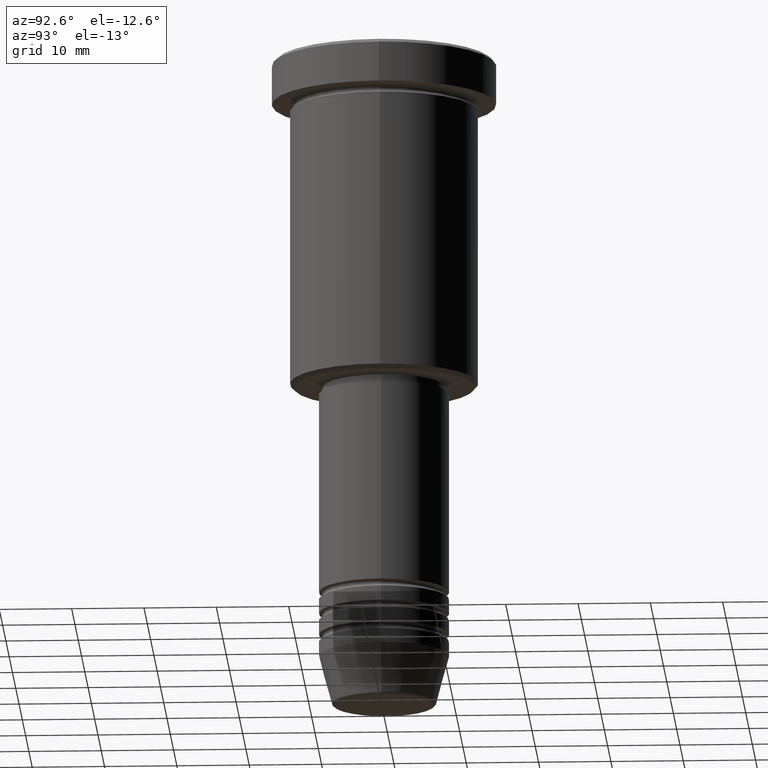
[diagram: clean part render]
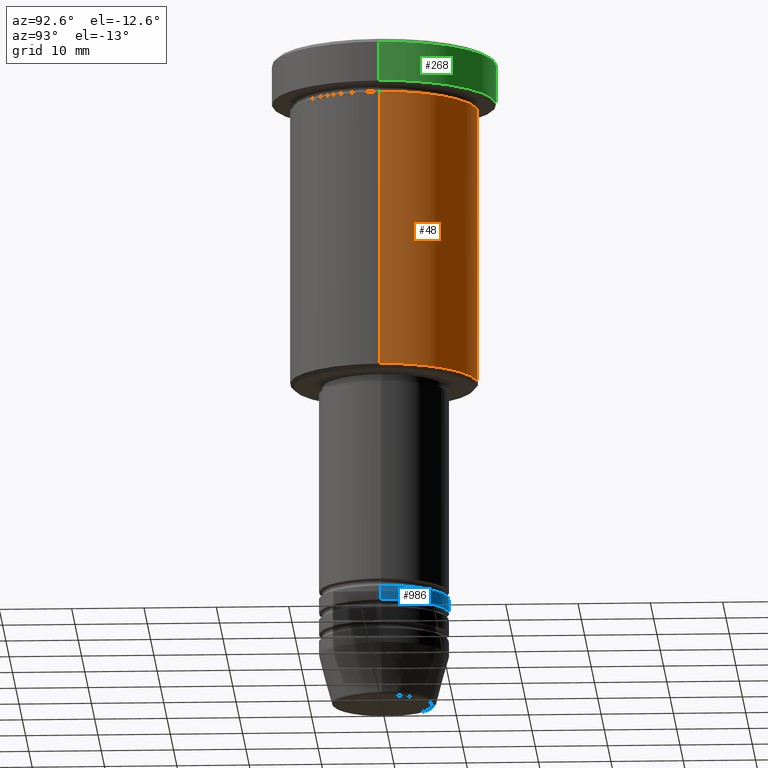
[diagram: same view with three faces highlighted in distinct colors, each labeled with its STEP entity id]
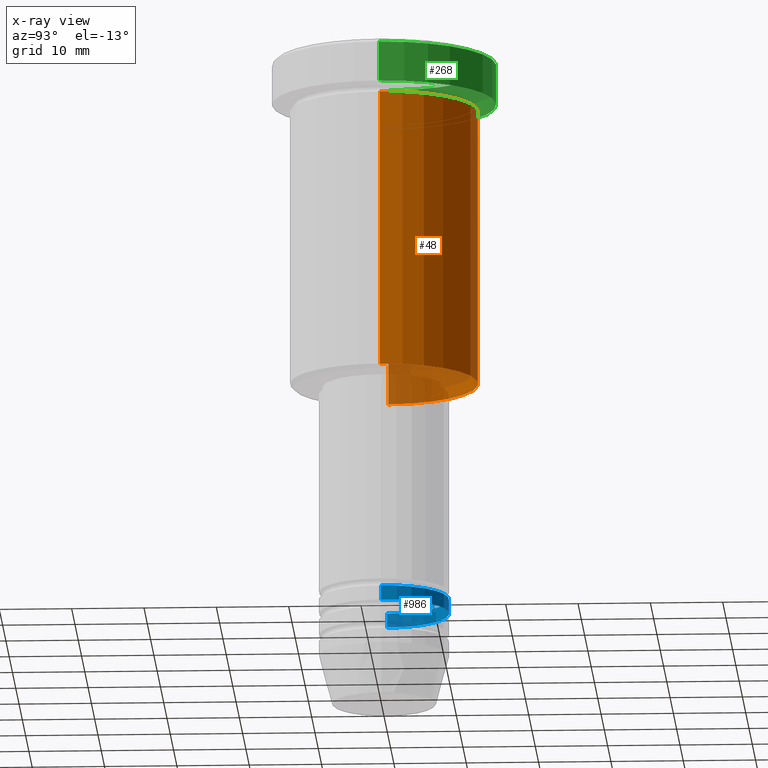
[diagram: x-ray of the same camera — body ghosted, the three highlighted faces saturated]
A machine part, auxiliary view with three faces highlighted in distinct colors.
The next image is the same camera in x-ray (body ghosted, the three faces saturated) — at least one of them is partly hidden behind the body in this view.
Their STEP definitions:

[orange] entity #48 — the highlighted cylindrical surface (partial cylindrical patch) has radius 13 mm, axis along (-0, -0, 1).
#30 = CIRCLE ( 'NONE', #69, 13.00000000000000000 ) ;
#48 = ADVANCED_FACE ( 'NONE', ( #1113 ), #553, .T. ) ;
#55 = CARTESIAN_POINT ( 'NONE',  ( 13.00000000000000000, 0.000000000000000000, -45.49999999999998579 ) ) ;
#69 = AXIS2_PLACEMENT_3D ( 'NONE', #176, #916, #374 ) ;
#134 = CARTESIAN_POINT ( 'NONE',  ( -13.00000000000000000, 1.592040838891559095E-15, -45.49999999999998579 ) ) ;
#152 = CARTESIAN_POINT ( 'NONE',  ( -13.00000000000000000, 1.592040838891559095E-15, 0.000000000000000000 ) ) ;
#174 = VERTEX_POINT ( 'NONE', #134 ) ;
#176 = CARTESIAN_POINT ( 'NONE',  ( 0.000000000000000000, 0.000000000000000000, -45.49999999999998579 ) ) ;
#208 = CARTESIAN_POINT ( 'NONE',  ( 0.000000000000000000, 0.000000000000000000, -6.999999999999995559 ) ) ;
#217 = CARTESIAN_POINT ( 'NONE',  ( 13.00000000000000000, 0.000000000000000000, 0.000000000000000000 ) ) ;
#220 = CIRCLE ( 'NONE', #845, 13.00000000000000000 ) ;
#239 = EDGE_CURVE ( 'NONE', #174, #995, #679, .T. ) ;
#240 = AXIS2_PLACEMENT_3D ( 'NONE', #383, #565, #937 ) ;
#273 = ORIENTED_EDGE ( 'NONE', *, *, #1008, .T. ) ;
#342 = DIRECTION ( 'NONE',  ( -0.000000000000000000, -0.000000000000000000, 1.000000000000000000 ) ) ;
#374 = DIRECTION ( 'NONE',  ( -1.000000000000000000, 0.000000000000000000, 0.000000000000000000 ) ) ;
#383 = CARTESIAN_POINT ( 'NONE',  ( 0.000000000000000000, 0.000000000000000000, 0.000000000000000000 ) ) ;
#413 = VECTOR ( 'NONE', #342, 1000.000000000000000 ) ;
#501 = VERTEX_POINT ( 'NONE', #742 ) ;
#512 = ORIENTED_EDGE ( 'NONE', *, *, #551, .F. ) ;
#516 = ORIENTED_EDGE ( 'NONE', *, *, #239, .T. ) ;
#546 = CARTESIAN_POINT ( 'NONE',  ( -13.00000000000000000, 1.592040838891559095E-15, -6.999999999999995559 ) ) ;
#551 = EDGE_CURVE ( 'NONE', #501, #995, #220, .T. ) ;
#553 = CYLINDRICAL_SURFACE ( 'NONE', #240, 13.00000000000000000 ) ;
#565 = DIRECTION ( 'NONE',  ( -0.000000000000000000, -0.000000000000000000, 1.000000000000000000 ) ) ;
#579 = DIRECTION ( 'NONE',  ( -0.000000000000000000, -0.000000000000000000, 1.000000000000000000 ) ) ;
#606 = ORIENTED_EDGE ( 'NONE', *, *, #724, .F. ) ;
#659 = DIRECTION ( 'NONE',  ( -0.000000000000000000, -0.000000000000000000, 1.000000000000000000 ) ) ;
#679 = LINE ( 'NONE', #152, #413 ) ;
#724 = EDGE_CURVE ( 'NONE', #780, #501, #1031, .T. ) ;
#742 = CARTESIAN_POINT ( 'NONE',  ( 13.00000000000000000, 0.000000000000000000, -6.999999999999995559 ) ) ;
#753 = VECTOR ( 'NONE', #579, 1000.000000000000000 ) ;
#757 = EDGE_LOOP ( 'NONE', ( #273, #516, #512, #606 ) ) ;
#780 = VERTEX_POINT ( 'NONE', #55 ) ;
#845 = AXIS2_PLACEMENT_3D ( 'NONE', #208, #659, #1015 ) ;
#916 = DIRECTION ( 'NONE',  ( -0.000000000000000000, -0.000000000000000000, 1.000000000000000000 ) ) ;
#937 = DIRECTION ( 'NONE',  ( 1.000000000000000000, 0.000000000000000000, 0.000000000000000000 ) ) ;
#995 = VERTEX_POINT ( 'NONE', #546 ) ;
#1008 = EDGE_CURVE ( 'NONE', #780, #174, #30, .T. ) ;
#1015 = DIRECTION ( 'NONE',  ( 1.000000000000000000, 0.000000000000000000, 0.000000000000000000 ) ) ;
#1031 = LINE ( 'NONE', #217, #753 ) ;
#1113 = FACE_OUTER_BOUND ( 'NONE', #757, .T. ) ;

[blue] entity #986 — the highlighted cylindrical surface (partial cylindrical patch) has radius 9 mm, axis along (-0, -0, 1).
#40 = CARTESIAN_POINT ( 'NONE',  ( 9.000000000000000000, 0.000000000000000000, -75.99999999999997158 ) ) ;
#85 = EDGE_CURVE ( 'NONE', #735, #932, #463, .T. ) ;
#130 = EDGE_LOOP ( 'NONE', ( #692, #327, #148, #906 ) ) ;
#148 = ORIENTED_EDGE ( 'NONE', *, *, #810, .F. ) ;
#182 = VECTOR ( 'NONE', #194, 1000.000000000000000 ) ;
#193 = DIRECTION ( 'NONE',  ( 1.000000000000000000, 0.000000000000000000, 0.000000000000000000 ) ) ;
#194 = DIRECTION ( 'NONE',  ( -0.000000000000000000, -0.000000000000000000, 1.000000000000000000 ) ) ;
#315 = AXIS2_PLACEMENT_3D ( 'NONE', #920, #1003, #193 ) ;
#319 = AXIS2_PLACEMENT_3D ( 'NONE', #1048, #328, #954 ) ;
#327 = ORIENTED_EDGE ( 'NONE', *, *, #85, .T. ) ;
#328 = DIRECTION ( 'NONE',  ( -0.000000000000000000, -0.000000000000000000, 1.000000000000000000 ) ) ;
#387 = LINE ( 'NONE', #1179, #182 ) ;
#463 = LINE ( 'NONE', #648, #577 ) ;
#503 = CARTESIAN_POINT ( 'NONE',  ( -9.000000000000000000, 1.102182119232617714E-15, -77.99999999999997158 ) ) ;
#547 = EDGE_CURVE ( 'NONE', #833, #1040, #387, .T. ) ;
#577 = VECTOR ( 'NONE', #581, 1000.000000000000000 ) ;
#581 = DIRECTION ( 'NONE',  ( -0.000000000000000000, -0.000000000000000000, 1.000000000000000000 ) ) ;
#627 = CARTESIAN_POINT ( 'NONE',  ( -9.000000000000000000, 1.102182119232617714E-15, -75.99999999999997158 ) ) ;
#638 = CIRCLE ( 'NONE', #319, 9.000000000000000000 ) ;
#648 = CARTESIAN_POINT ( 'NONE',  ( -9.000000000000000000, 1.102182119232617714E-15, 0.000000000000000000 ) ) ;
#678 = CIRCLE ( 'NONE', #1156, 9.000000000000000000 ) ;
#685 = EDGE_CURVE ( 'NONE', #833, #735, #638, .T. ) ;
#692 = ORIENTED_EDGE ( 'NONE', *, *, #685, .T. ) ;
#722 = DIRECTION ( 'NONE',  ( -0.000000000000000000, -0.000000000000000000, 1.000000000000000000 ) ) ;
#730 = FACE_OUTER_BOUND ( 'NONE', #130, .T. ) ;
#735 = VERTEX_POINT ( 'NONE', #503 ) ;
#798 = CARTESIAN_POINT ( 'NONE',  ( 9.000000000000000000, 0.000000000000000000, -77.99999999999997158 ) ) ;
#810 = EDGE_CURVE ( 'NONE', #1040, #932, #678, .T. ) ;
#833 = VERTEX_POINT ( 'NONE', #798 ) ;
#906 = ORIENTED_EDGE ( 'NONE', *, *, #547, .F. ) ;
#920 = CARTESIAN_POINT ( 'NONE',  ( 0.000000000000000000, 0.000000000000000000, 0.000000000000000000 ) ) ;
#932 = VERTEX_POINT ( 'NONE', #627 ) ;
#954 = DIRECTION ( 'NONE',  ( 1.000000000000000000, 0.000000000000000000, 0.000000000000000000 ) ) ;
#986 = ADVANCED_FACE ( 'NONE', ( #730 ), #1009, .T. ) ;
#1003 = DIRECTION ( 'NONE',  ( -0.000000000000000000, -0.000000000000000000, 1.000000000000000000 ) ) ;
#1009 = CYLINDRICAL_SURFACE ( 'NONE', #315, 9.000000000000000000 ) ;
#1040 = VERTEX_POINT ( 'NONE', #40 ) ;
#1048 = CARTESIAN_POINT ( 'NONE',  ( 0.000000000000000000, 0.000000000000000000, -77.99999999999997158 ) ) ;
#1057 = DIRECTION ( 'NONE',  ( 1.000000000000000000, 0.000000000000000000, 0.000000000000000000 ) ) ;
#1156 = AXIS2_PLACEMENT_3D ( 'NONE', #1171, #722, #1057 ) ;
#1171 = CARTESIAN_POINT ( 'NONE',  ( 0.000000000000000000, 0.000000000000000000, -75.99999999999997158 ) ) ;
#1179 = CARTESIAN_POINT ( 'NONE',  ( 9.000000000000000000, 0.000000000000000000, 0.000000000000000000 ) ) ;

[green] entity #268 — the highlighted cylindrical surface (partial cylindrical patch) has radius 15.5 mm, axis along (-0, -0, 1).
#156 = DIRECTION ( 'NONE',  ( -0.000000000000000000, -0.000000000000000000, 1.000000000000000000 ) ) ;
#163 = VERTEX_POINT ( 'NONE', #1141 ) ;
#167 = DIRECTION ( 'NONE',  ( -0.000000000000000000, -0.000000000000000000, 1.000000000000000000 ) ) ;
#168 = EDGE_LOOP ( 'NONE', ( #441, #1006, #1083, #824 ) ) ;
#177 = LINE ( 'NONE', #903, #636 ) ;
#257 = FACE_OUTER_BOUND ( 'NONE', #168, .T. ) ;
#262 = CIRCLE ( 'NONE', #961, 15.50000000000000000 ) ;
#268 = ADVANCED_FACE ( 'NONE', ( #257 ), #784, .T. ) ;
#271 = CARTESIAN_POINT ( 'NONE',  ( -15.50000000000000000, 1.898202538678397557E-15, -5.999999999999995559 ) ) ;
#333 = EDGE_CURVE ( 'NONE', #163, #938, #262, .T. ) ;
#336 = EDGE_CURVE ( 'NONE', #938, #1078, #177, .T. ) ;
#337 = CIRCLE ( 'NONE', #544, 15.50000000000000000 ) ;
#435 = CARTESIAN_POINT ( 'NONE',  ( 15.50000000000000000, 0.000000000000000000, 0.000000000000000000 ) ) ;
#441 = ORIENTED_EDGE ( 'NONE', *, *, #333, .T. ) ;
#494 = CARTESIAN_POINT ( 'NONE',  ( -15.50000000000000000, 1.898202538678397557E-15, -0.4999999999999987232 ) ) ;
#510 = DIRECTION ( 'NONE',  ( -0.000000000000000000, -0.000000000000000000, 1.000000000000000000 ) ) ;
#513 = CARTESIAN_POINT ( 'NONE',  ( 0.000000000000000000, 0.000000000000000000, -0.4999999999999987232 ) ) ;
#517 = LINE ( 'NONE', #435, #1134 ) ;
#544 = AXIS2_PLACEMENT_3D ( 'NONE', #513, #594, #868 ) ;
#594 = DIRECTION ( 'NONE',  ( 0.000000000000000000, 0.000000000000000000, -1.000000000000000000 ) ) ;
#614 = CARTESIAN_POINT ( 'NONE',  ( 0.000000000000000000, 0.000000000000000000, 0.000000000000000000 ) ) ;
#625 = DIRECTION ( 'NONE',  ( -0.000000000000000000, -0.000000000000000000, 1.000000000000000000 ) ) ;
#628 = DIRECTION ( 'NONE',  ( 1.000000000000000000, 0.000000000000000000, 0.000000000000000000 ) ) ;
#636 = VECTOR ( 'NONE', #167, 1000.000000000000000 ) ;
#748 = VERTEX_POINT ( 'NONE', #1145 ) ;
#784 = CYLINDRICAL_SURFACE ( 'NONE', #1173, 15.50000000000000000 ) ;
#824 = ORIENTED_EDGE ( 'NONE', *, *, #1177, .F. ) ;
#856 = EDGE_CURVE ( 'NONE', #1078, #748, #337, .T. ) ;
#868 = DIRECTION ( 'NONE',  ( 1.000000000000000000, 0.000000000000000000, 0.000000000000000000 ) ) ;
#903 = CARTESIAN_POINT ( 'NONE',  ( -15.50000000000000000, 1.898202538678397557E-15, 0.000000000000000000 ) ) ;
#938 = VERTEX_POINT ( 'NONE', #271 ) ;
#961 = AXIS2_PLACEMENT_3D ( 'NONE', #1064, #625, #991 ) ;
#991 = DIRECTION ( 'NONE',  ( 1.000000000000000000, 0.000000000000000000, 0.000000000000000000 ) ) ;
#1006 = ORIENTED_EDGE ( 'NONE', *, *, #336, .T. ) ;
#1064 = CARTESIAN_POINT ( 'NONE',  ( 0.000000000000000000, 0.000000000000000000, -5.999999999999995559 ) ) ;
#1078 = VERTEX_POINT ( 'NONE', #494 ) ;
#1083 = ORIENTED_EDGE ( 'NONE', *, *, #856, .T. ) ;
#1134 = VECTOR ( 'NONE', #510, 1000.000000000000000 ) ;
#1141 = CARTESIAN_POINT ( 'NONE',  ( 15.50000000000000000, 0.000000000000000000, -5.999999999999995559 ) ) ;
#1145 = CARTESIAN_POINT ( 'NONE',  ( 15.50000000000000000, 0.000000000000000000, -0.4999999999999987232 ) ) ;
#1173 = AXIS2_PLACEMENT_3D ( 'NONE', #614, #156, #628 ) ;
#1177 = EDGE_CURVE ( 'NONE', #163, #748, #517, .T. ) ;